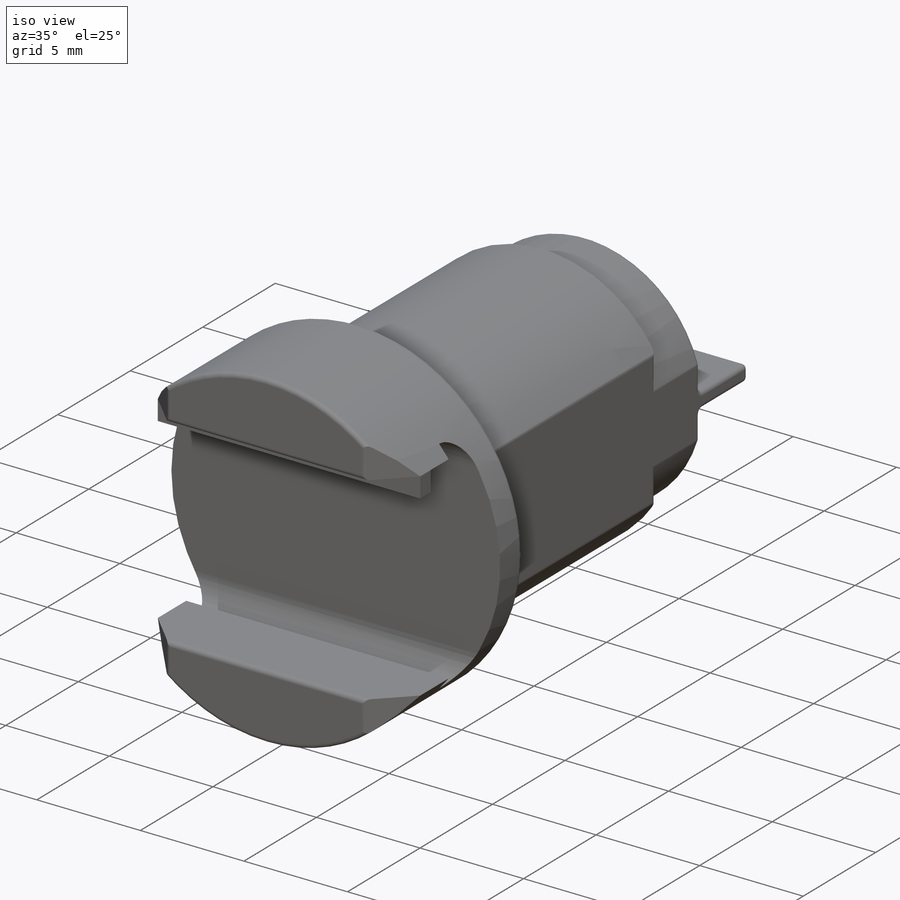
[diagram: iso view]
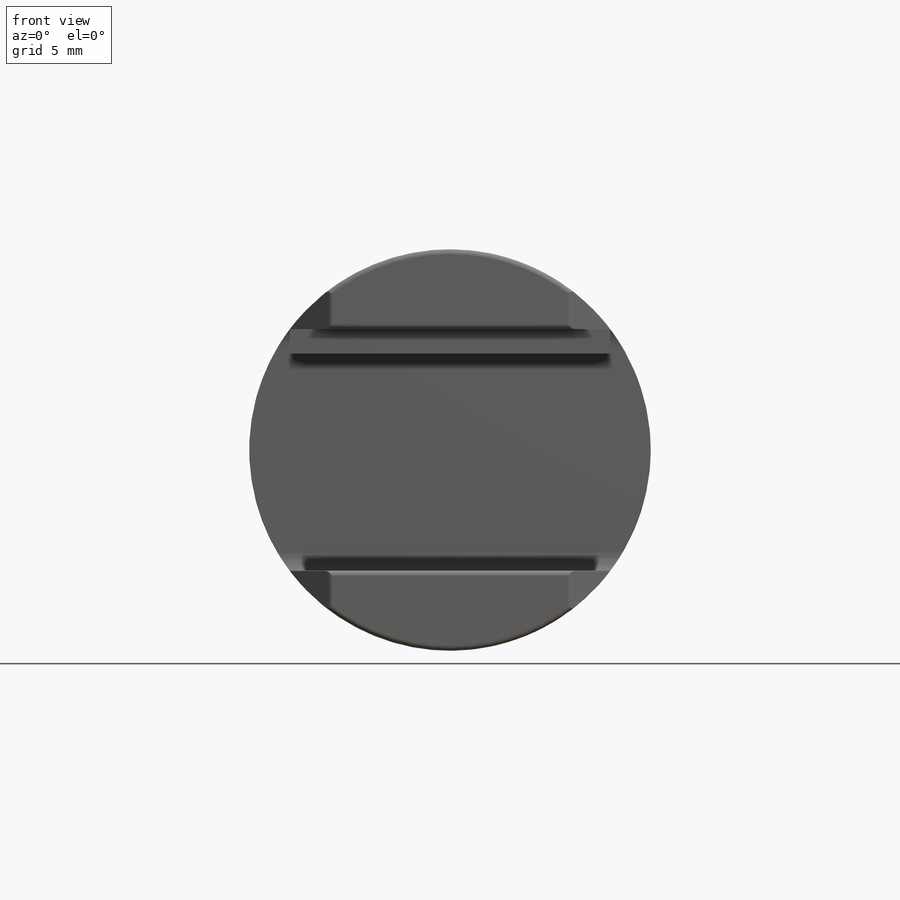
[diagram: front view]
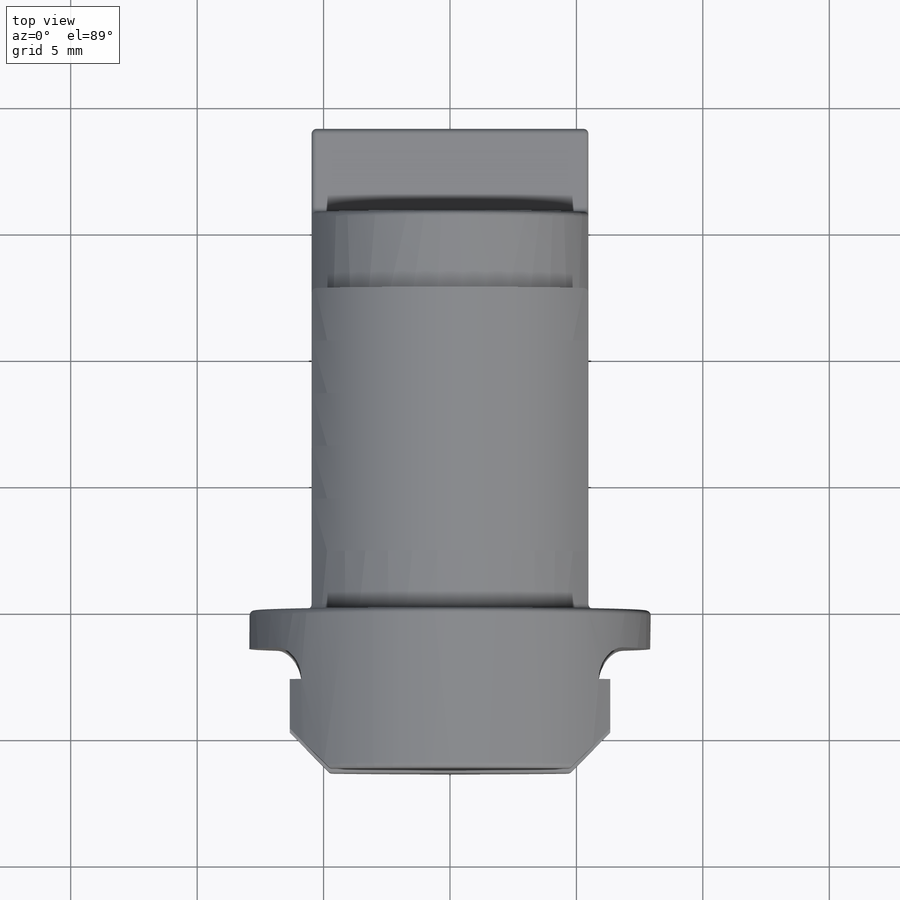
[diagram: top view]
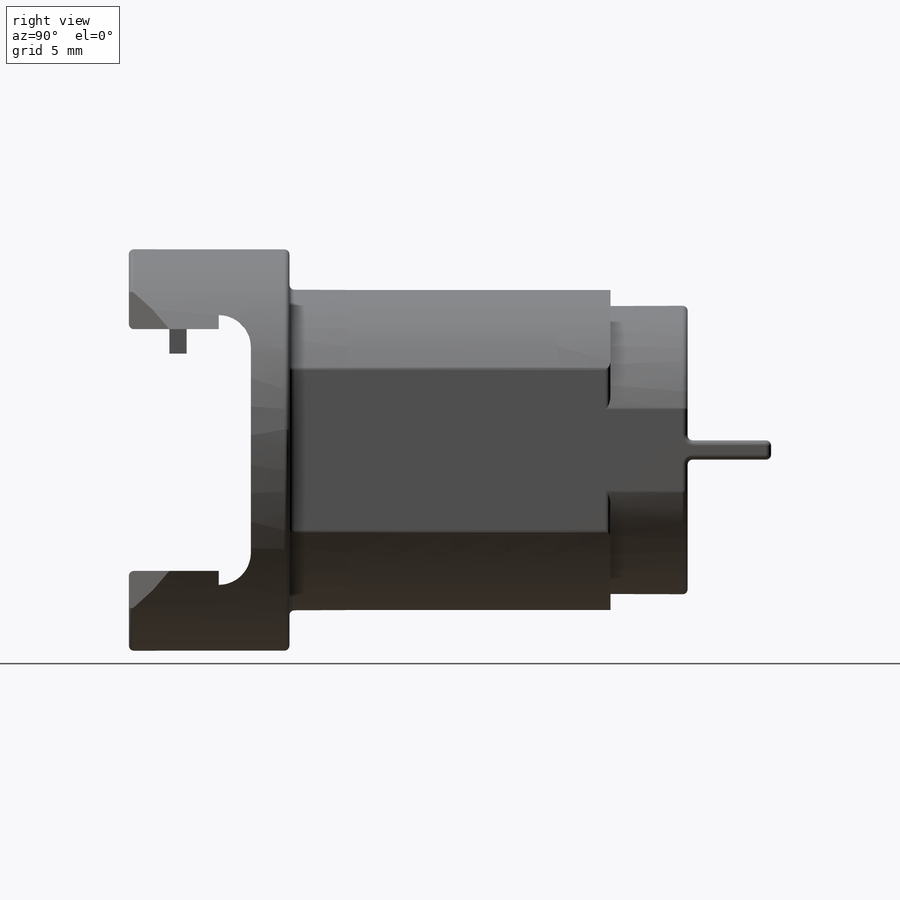
[diagram: right view]
SOLIDWORKS PART (.sldprt)
format: sldprt  version: not decoded by parser v0  size: 420,864 bytes
history: native  units: mm
features: sketch x7, cut_extrude x4, extrude x3, material x1, thread x1, fillet x1 (+16 scaffold rows collapsed)
feature tree (33):
  scaffold x16  (default folders/planes/origin — collapsed)
  material  "ABS"
  sketch  "Sketch1"  dims[D1=15.875mm]
  extrude  "Extrude1"  Depth=6.35mm
  sketch  "Sketch2"  dims[D1=12.7mm]
  extrude  "Extrude2"  [1 undecoded]
  thread  "Cosmetic Thread1"  Diameter=11.5443mm  [1 undecoded]
  sketch  "Sketch3"  dims[D1=11.43mm]
  cut_extrude  "Extrude3"  [1 undecoded]
  sketch  "Sketch4"  dims[D1=5.4737mm D2=5.4737mm]
  cut_extrude  "Extrude4"  [1 undecoded]
  sketch  "Sketch5"  dims[D1=0.381mm D2=0.381mm]
  extrude  "Extrude5"  Depth=19.05mm
  sketch  "Sketch7"  dims[D8=1.27mm D5=1.524mm D1=1.524mm D2=1.27mm D3=2.54mm D4=0.6858mm D6=5.334mm D7=5.334mm D9=~4.78155mm D10=~4.78155mm]
  cut_extrude  "Extrude6"  [1 undecoded]
  sketch  "Sketch11"  dims[c1.D1=~5.111571mm c2.D1=45.0deg c3.D1=1.6002mm c4.D1=45.0deg c4.D2=~2.263025mm c5.D1=1.27mm c5.D2=2.54mm]
  cut_extrude  "Extrude9"  [1 undecoded]
  fillet  "Fillet2"  Radius=0.198437mm
decode coverage: 11 of 16 modeling features carry decoded parameters
note: ~ marks probable driven/reference dimensions
note: 6 parameter values undecoded
summary: no parameter record found for 5 features
note: suppression state not decoded; provenance and decode notes live in map.json
